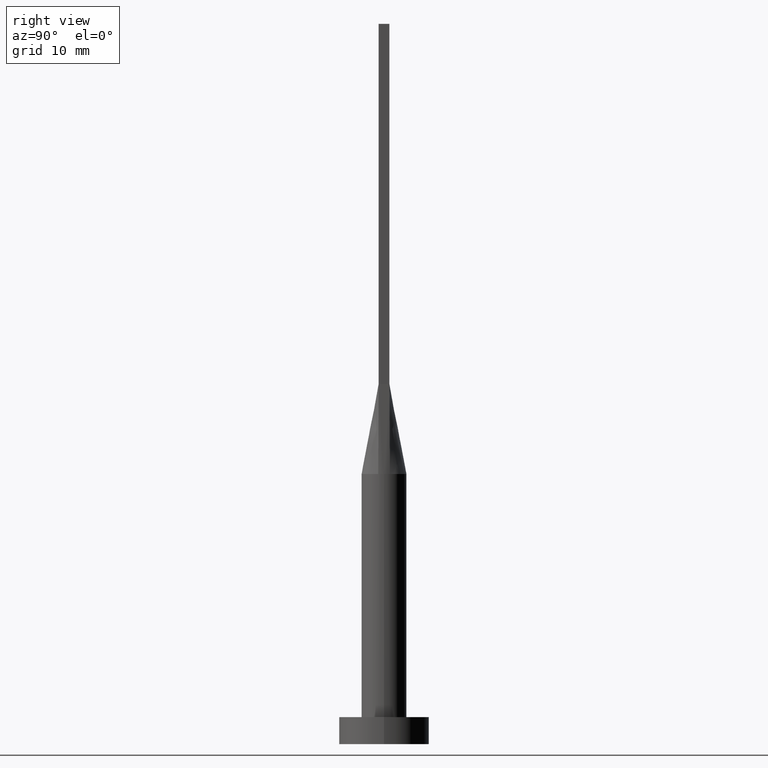
[diagram: clean part render]
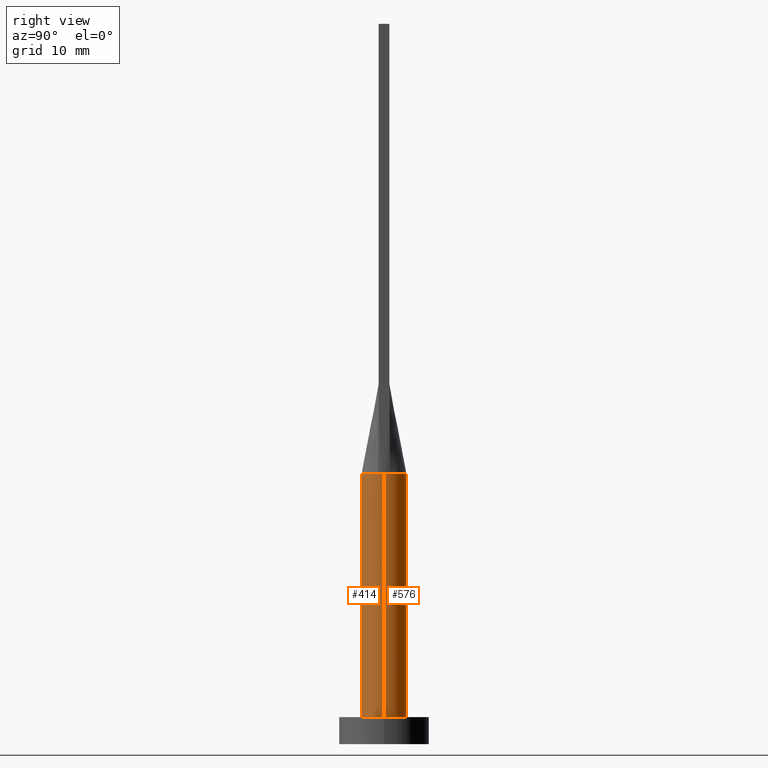
[diagram: same view with one multi-face feature highlighted, each face labeled with its STEP entity id]
A machine part, right view. The highlighted faces form ONE feature: a constant-radius fillet chain: 2 tangent blend faces with common blend radius 2.5 mm. The faces share edges in the B-rep.
Their STEP definitions:
[1] entity #414 (Cylinder):
#15 = EDGE_CURVE ( 'NONE', #521, #509, #29, .T. ) ;
#29 = CIRCLE ( 'NONE', #512, 2.500000000000000000 ) ;
#41 = ORIENTED_EDGE ( 'NONE', *, *, #198, .T. ) ;
#49 = CARTESIAN_POINT ( 'NONE',  ( -2.499999999999999556, -1.638601646481158325E-16, 29.99999999999999289 ) ) ;
#69 = LINE ( 'NONE', #552, #439 ) ;
#101 = AXIS2_PLACEMENT_3D ( 'NONE', #288, #461, #427 ) ;
#102 = CARTESIAN_POINT ( 'NONE',  ( 2.500000000000000000, 3.061616997868383141E-16, 3.000000000000000000 ) ) ;
#107 = DIRECTION ( 'NONE',  ( 0.000000000000000000, 0.000000000000000000, 1.000000000000000000 ) ) ;
#123 = VERTEX_POINT ( 'NONE', #133 ) ;
#128 = VERTEX_POINT ( 'NONE', #538 ) ;
#133 = CARTESIAN_POINT ( 'NONE',  ( 2.499999999999999556, 1.077931475469669239E-17, 29.99999999999999289 ) ) ;
#148 = VECTOR ( 'NONE', #323, 1000.000000000000000 ) ;
#157 = CARTESIAN_POINT ( 'NONE',  ( 0.000000000000000000, 0.000000000000000000, 30.00000000000000000 ) ) ;
#163 = VERTEX_POINT ( 'NONE', #195 ) ;
#164 = CIRCLE ( 'NONE', #452, 2.500000000000000000 ) ;
#191 = LINE ( 'NONE', #370, #148 ) ;
#195 = CARTESIAN_POINT ( 'NONE',  ( -2.415759998437587708, -0.6442033382925431706, 30.00000000000000000 ) ) ;
#197 = ORIENTED_EDGE ( 'NONE', *, *, #248, .F. ) ;
#198 = EDGE_CURVE ( 'NONE', #505, #521, #69, .T. ) ;
#213 = DIRECTION ( 'NONE',  ( 1.000000000000000000, 0.000000000000000000, 0.000000000000000000 ) ) ;
#215 = CARTESIAN_POINT ( 'NONE',  ( 0.000000000000000000, 0.000000000000000000, 30.00000000000000000 ) ) ;
#248 = EDGE_CURVE ( 'NONE', #128, #123, #527, .T. ) ;
#256 = ORIENTED_EDGE ( 'NONE', *, *, #338, .F. ) ;
#265 = ORIENTED_EDGE ( 'NONE', *, *, #328, .F. ) ;
#288 = CARTESIAN_POINT ( 'NONE',  ( 0.000000000000000000, 0.000000000000000000, 30.00000000000000000 ) ) ;
#295 = DIRECTION ( 'NONE',  ( -0.000000000000000000, -0.000000000000000000, -1.000000000000000000 ) ) ;
#296 = ORIENTED_EDGE ( 'NONE', *, *, #15, .T. ) ;
#300 = EDGE_CURVE ( 'NONE', #505, #163, #164, .T. ) ;
#303 = CYLINDRICAL_SURFACE ( 'NONE', #368, 2.500000000000000000 ) ;
#306 = DIRECTION ( 'NONE',  ( 0.000000000000000000, 0.000000000000000000, 1.000000000000000000 ) ) ;
#323 = DIRECTION ( 'NONE',  ( -0.000000000000000000, -0.000000000000000000, -1.000000000000000000 ) ) ;
#325 = DIRECTION ( 'NONE',  ( 1.000000000000000000, 3.552713678800500929E-15, 0.000000000000000000 ) ) ;
#328 = EDGE_CURVE ( 'NONE', #163, #128, #454, .T. ) ;
#333 = FACE_OUTER_BOUND ( 'NONE', #387, .T. ) ;
#338 = EDGE_CURVE ( 'NONE', #123, #509, #191, .T. ) ;
#368 = AXIS2_PLACEMENT_3D ( 'NONE', #215, #295, #432 ) ;
#370 = CARTESIAN_POINT ( 'NONE',  ( 2.500000000000000000, 3.061616997868383141E-16, 30.00000000000000000 ) ) ;
#387 = EDGE_LOOP ( 'NONE', ( #256, #197, #265, #573, #41, #296 ) ) ;
#407 = CARTESIAN_POINT ( 'NONE',  ( -2.500000000000000000, 0.000000000000000000, 3.000000000000000000 ) ) ;
#414 = ADVANCED_FACE ( 'NONE', ( #333 ), #303, .T. ) ;
#427 = DIRECTION ( 'NONE',  ( 1.000000000000000000, 0.000000000000000000, 0.000000000000000000 ) ) ;
#432 = DIRECTION ( 'NONE',  ( -1.000000000000000000, 0.000000000000000000, 0.000000000000000000 ) ) ;
#439 = VECTOR ( 'NONE', #464, 1000.000000000000000 ) ;
#452 = AXIS2_PLACEMENT_3D ( 'NONE', #157, #467, #550 ) ;
#454 = CIRCLE ( 'NONE', #101, 2.500000000000000000 ) ;
#461 = DIRECTION ( 'NONE',  ( 0.000000000000000000, 0.000000000000000000, 1.000000000000000000 ) ) ;
#464 = DIRECTION ( 'NONE',  ( -0.000000000000000000, -0.000000000000000000, -1.000000000000000000 ) ) ;
#467 = DIRECTION ( 'NONE',  ( 0.000000000000000000, 0.000000000000000000, 1.000000000000000000 ) ) ;
#505 = VERTEX_POINT ( 'NONE', #49 ) ;
#509 = VERTEX_POINT ( 'NONE', #102 ) ;
#512 = AXIS2_PLACEMENT_3D ( 'NONE', #529, #306, #213 ) ;
#521 = VERTEX_POINT ( 'NONE', #407 ) ;
#527 = CIRCLE ( 'NONE', #574, 2.500000000000000000 ) ;
#529 = CARTESIAN_POINT ( 'NONE',  ( 0.000000000000000000, 0.000000000000000000, 3.000000000000000000 ) ) ;
#538 = CARTESIAN_POINT ( 'NONE',  ( 2.415783834663384866, -0.6442097370852554183, 30.00000000000000000 ) ) ;
#550 = DIRECTION ( 'NONE',  ( 1.000000000000000000, 0.000000000000000000, 0.000000000000000000 ) ) ;
#552 = CARTESIAN_POINT ( 'NONE',  ( -2.500000000000000000, 0.000000000000000000, 30.00000000000000000 ) ) ;
#557 = CARTESIAN_POINT ( 'NONE',  ( 0.000000000000000000, 0.000000000000000000, 30.00000000000000000 ) ) ;
#573 = ORIENTED_EDGE ( 'NONE', *, *, #300, .F. ) ;
#574 = AXIS2_PLACEMENT_3D ( 'NONE', #557, #107, #325 ) ;
[2] entity #576 (Cylinder):
#6 = ORIENTED_EDGE ( 'NONE', *, *, #446, .F. ) ;
#24 = CIRCLE ( 'NONE', #231, 2.500000000000000000 ) ;
#36 = ORIENTED_EDGE ( 'NONE', *, *, #198, .F. ) ;
#49 = CARTESIAN_POINT ( 'NONE',  ( -2.499999999999999556, -1.638601646481158325E-16, 29.99999999999999289 ) ) ;
#67 = ORIENTED_EDGE ( 'NONE', *, *, #258, .T. ) ;
#69 = LINE ( 'NONE', #552, #439 ) ;
#85 = DIRECTION ( 'NONE',  ( 1.000000000000000000, 0.000000000000000000, 0.000000000000000000 ) ) ;
#88 = CARTESIAN_POINT ( 'NONE',  ( -1.466504377161500727, 2.043814966248090226, 30.00000000000000000 ) ) ;
#102 = CARTESIAN_POINT ( 'NONE',  ( 2.500000000000000000, 3.061616997868383141E-16, 3.000000000000000000 ) ) ;
#122 = CARTESIAN_POINT ( 'NONE',  ( -0.6394215159088052491, 2.436483607037785326, 30.00000000000000355 ) ) ;
#123 = VERTEX_POINT ( 'NONE', #133 ) ;
#133 = CARTESIAN_POINT ( 'NONE',  ( 2.499999999999999556, 1.077931475469669239E-17, 29.99999999999999289 ) ) ;
#145 = AXIS2_PLACEMENT_3D ( 'NONE', #322, #459, #331 ) ;
#148 = VECTOR ( 'NONE', #323, 1000.000000000000000 ) ;
#170 = CARTESIAN_POINT ( 'NONE',  ( 2.283437435282019923, 1.045786430836911585, 30.00000000000000711 ) ) ;
#173 = CARTESIAN_POINT ( 'NONE',  ( 2.042400361660745567, 1.461628045180436430, 29.99999999999999289 ) ) ;
#177 = CYLINDRICAL_SURFACE ( 'NONE', #558, 2.500000000000000000 ) ;
#185 = CARTESIAN_POINT ( 'NONE',  ( -2.363720129086103849, 0.8386587010896275896, 30.00000000000001066 ) ) ;
#191 = LINE ( 'NONE', #370, #148 ) ;
#192 = B_SPLINE_CURVE_WITH_KNOTS ( 'NONE', 3,
 ( #569, #430, #170, #173, #563, #480, #518, #437, #392, #348, #122, #482, #88, #206, #380, #473, #185, #450 ),
 .UNSPECIFIED., .F., .F.,
 ( 4, 2, 2, 2, 2, 2, 2, 2, 4 ),
 ( 0.000000000000000000, 0.1249999999999999445, 0.2499999999999998890, 0.3749999999999998335, 0.4999999999999997780, 0.6249999999999997780, 0.7499999999999997780, 0.8749999999999997780, 1.000000000000000000 ),
 .UNSPECIFIED. ) ;
#198 = EDGE_CURVE ( 'NONE', #505, #521, #69, .T. ) ;
#203 = ORIENTED_EDGE ( 'NONE', *, *, #375, .F. ) ;
#206 = CARTESIAN_POINT ( 'NONE',  ( -1.880930080310023733, 1.670304384679167420, 30.00000000000000000 ) ) ;
#220 = VERTEX_POINT ( 'NONE', #501 ) ;
#225 = DIRECTION ( 'NONE',  ( 0.000000000000000000, 0.000000000000000000, 1.000000000000000000 ) ) ;
#231 = AXIS2_PLACEMENT_3D ( 'NONE', #434, #386, #85 ) ;
#246 = VERTEX_POINT ( 'NONE', #284 ) ;
#258 = EDGE_CURVE ( 'NONE', #509, #521, #526, .T. ) ;
#280 = CARTESIAN_POINT ( 'NONE',  ( 0.000000000000000000, 0.000000000000000000, 30.00000000000000000 ) ) ;
#284 = CARTESIAN_POINT ( 'NONE',  ( -2.415775789045403688, 0.6442075170323000588, 30.00000000000000000 ) ) ;
#322 = CARTESIAN_POINT ( 'NONE',  ( 0.000000000000000000, 0.000000000000000000, 3.000000000000000000 ) ) ;
#323 = DIRECTION ( 'NONE',  ( -0.000000000000000000, -0.000000000000000000, -1.000000000000000000 ) ) ;
#331 = DIRECTION ( 'NONE',  ( 1.000000000000000000, 0.000000000000000000, 0.000000000000000000 ) ) ;
#338 = EDGE_CURVE ( 'NONE', #123, #509, #191, .T. ) ;
#348 = CARTESIAN_POINT ( 'NONE',  ( -0.3201159637850009010, 2.500000000000000444, 30.00000000000001066 ) ) ;
#370 = CARTESIAN_POINT ( 'NONE',  ( 2.500000000000000000, 3.061616997868383141E-16, 30.00000000000000000 ) ) ;
#375 = EDGE_CURVE ( 'NONE', #123, #220, #24, .T. ) ;
#380 = CARTESIAN_POINT ( 'NONE',  ( -2.042400361660746899, 1.461628045180436430, 30.00000000000000355 ) ) ;
#386 = DIRECTION ( 'NONE',  ( 0.000000000000000000, 0.000000000000000000, 1.000000000000000000 ) ) ;
#392 = CARTESIAN_POINT ( 'NONE',  ( 0.3201159637850002349, 2.500000000000000888, 30.00000000000000355 ) ) ;
#407 = CARTESIAN_POINT ( 'NONE',  ( -2.500000000000000000, 0.000000000000000000, 3.000000000000000000 ) ) ;
#409 = EDGE_LOOP ( 'NONE', ( #203, #525, #67, #36, #517, #6 ) ) ;
#410 = FACE_OUTER_BOUND ( 'NONE', #409, .T. ) ;
#430 = CARTESIAN_POINT ( 'NONE',  ( 2.363720129086103405, 0.8386587010896275896, 29.99999999999999645 ) ) ;
#434 = CARTESIAN_POINT ( 'NONE',  ( 0.000000000000000000, 0.000000000000000000, 30.00000000000000000 ) ) ;
#437 = CARTESIAN_POINT ( 'NONE',  ( 0.6394215159088050271, 2.436483607037784882, 29.99999999999998579 ) ) ;
#439 = VECTOR ( 'NONE', #464, 1000.000000000000000 ) ;
#446 = EDGE_CURVE ( 'NONE', #220, #246, #192, .T. ) ;
#450 = CARTESIAN_POINT ( 'NONE',  ( -2.415775789045403688, 0.6442075170323000588, 30.00000000000000000 ) ) ;
#459 = DIRECTION ( 'NONE',  ( 0.000000000000000000, 0.000000000000000000, 1.000000000000000000 ) ) ;
#464 = DIRECTION ( 'NONE',  ( -0.000000000000000000, -0.000000000000000000, -1.000000000000000000 ) ) ;
#473 = CARTESIAN_POINT ( 'NONE',  ( -2.283437435282019923, 1.045786430836911141, 30.00000000000000355 ) ) ;
#480 = CARTESIAN_POINT ( 'NONE',  ( 1.466504377161500949, 2.043814966248089782, 29.99999999999999289 ) ) ;
#482 = CARTESIAN_POINT ( 'NONE',  ( -1.212939335911090044, 2.207734225347456114, 30.00000000000000000 ) ) ;
#489 = DIRECTION ( 'NONE',  ( -1.000000000000000000, 0.000000000000000000, 0.000000000000000000 ) ) ;
#492 = DIRECTION ( 'NONE',  ( -0.000000000000000000, -0.000000000000000000, -1.000000000000000000 ) ) ;
#499 = AXIS2_PLACEMENT_3D ( 'NONE', #580, #225, #534 ) ;
#501 = CARTESIAN_POINT ( 'NONE',  ( 2.415751997725693823, 0.6442011318043520118, 30.00000000000000000 ) ) ;
#505 = VERTEX_POINT ( 'NONE', #49 ) ;
#509 = VERTEX_POINT ( 'NONE', #102 ) ;
#517 = ORIENTED_EDGE ( 'NONE', *, *, #559, .F. ) ;
#518 = CARTESIAN_POINT ( 'NONE',  ( 1.212939335911088934, 2.207734225347457002, 29.99999999999999289 ) ) ;
#521 = VERTEX_POINT ( 'NONE', #407 ) ;
#525 = ORIENTED_EDGE ( 'NONE', *, *, #338, .T. ) ;
#526 = CIRCLE ( 'NONE', #145, 2.500000000000000000 ) ;
#534 = DIRECTION ( 'NONE',  ( 1.000000000000000000, 0.000000000000000000, 0.000000000000000000 ) ) ;
#552 = CARTESIAN_POINT ( 'NONE',  ( -2.500000000000000000, 0.000000000000000000, 30.00000000000000000 ) ) ;
#558 = AXIS2_PLACEMENT_3D ( 'NONE', #280, #492, #489 ) ;
#559 = EDGE_CURVE ( 'NONE', #246, #505, #575, .T. ) ;
#563 = CARTESIAN_POINT ( 'NONE',  ( 1.880930080310023289, 1.670304384679167642, 29.99999999999999645 ) ) ;
#569 = CARTESIAN_POINT ( 'NONE',  ( 2.415751997725693823, 0.6442011318043520118, 30.00000000000000000 ) ) ;
#575 = CIRCLE ( 'NONE', #499, 2.500000000000000000 ) ;
#576 = ADVANCED_FACE ( 'NONE', ( #410 ), #177, .T. ) ;
#580 = CARTESIAN_POINT ( 'NONE',  ( 0.000000000000000000, 0.000000000000000000, 30.00000000000000000 ) ) ;